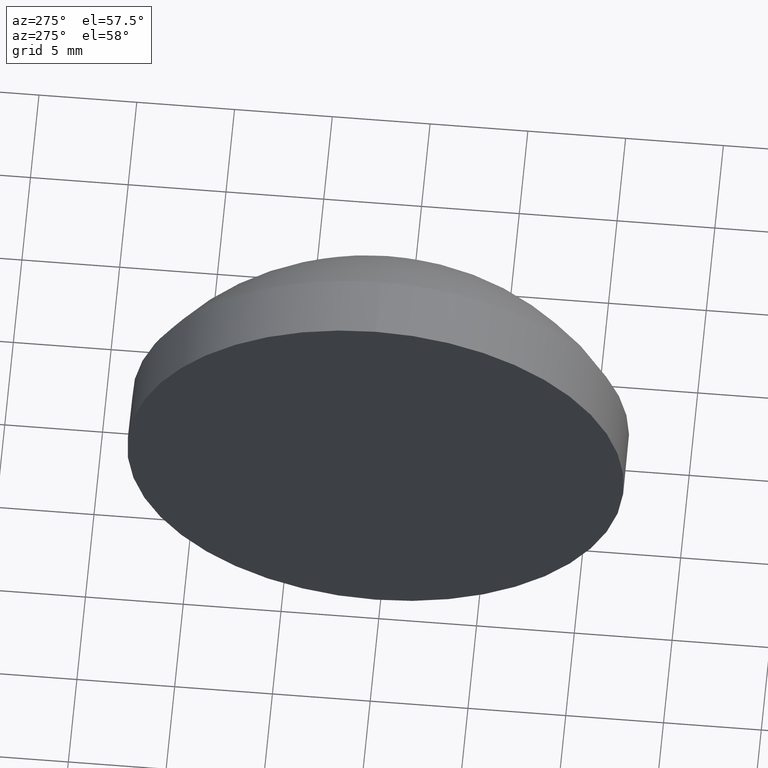
[diagram: clean part render]
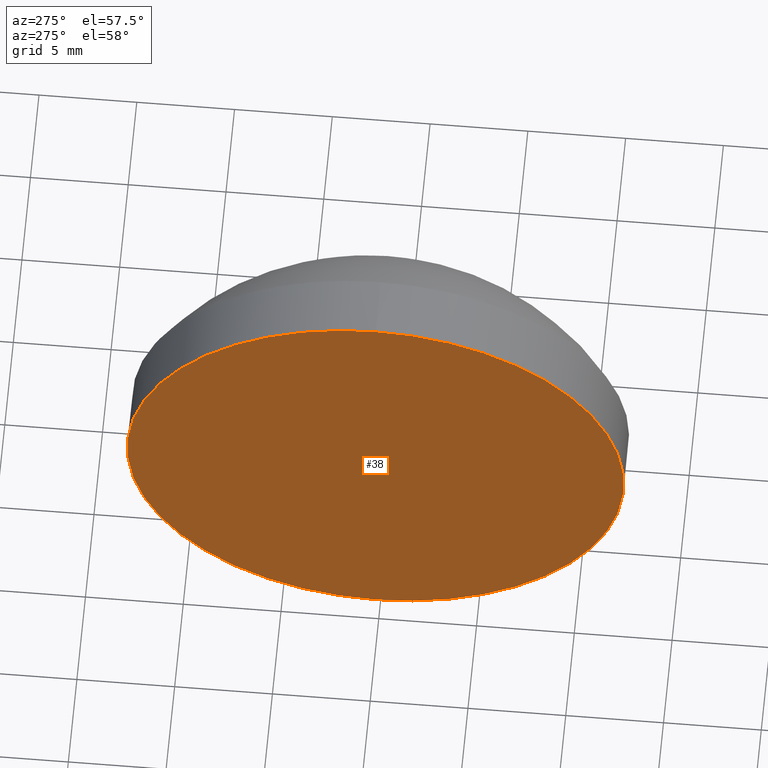
[diagram: same view with one face highlighted and labeled with its STEP entity id]
A machine part, auxiliary view. The second image highlights one B-rep face of the part: STEP entity #38.
In plain terms, the highlighted planar face has unit normal (1, 0, 0).
Its self-contained STEP definition (entity closure, byte-faithful):
#7 = PLANE ( 'NONE',  #16 ) ;
#15 = EDGE_LOOP ( 'NONE', ( #67, #17 ) ) ;
#16 = AXIS2_PLACEMENT_3D ( 'NONE', #123, #55, #37 ) ;
#17 = ORIENTED_EDGE ( 'NONE', *, *, #36, .T. ) ;
#21 = DIRECTION ( 'NONE',  ( -1.000000000000000000, -0.0000000000000000000, -0.0000000000000000000 ) ) ;
#36 = EDGE_CURVE ( 'NONE', #103, #137, #162, .T. ) ;
#37 = DIRECTION ( 'NONE',  ( 0.0000000000000000000, 0.0000000000000000000, -1.000000000000000000 ) ) ;
#38 = ADVANCED_FACE ( 'NONE', ( #71 ), #7, .F. ) ;
#55 = DIRECTION ( 'NONE',  ( 1.000000000000000000, 0.0000000000000000000, 0.0000000000000000000 ) ) ;
#67 = ORIENTED_EDGE ( 'NONE', *, *, #76, .T. ) ;
#71 = FACE_OUTER_BOUND ( 'NONE', #15, .T. ) ;
#76 = EDGE_CURVE ( 'NONE', #137, #103, #134, .T. ) ;
#80 = CARTESIAN_POINT ( 'NONE',  ( 115.7736064308381300, 65.23355492641219700, 0.0000000000000000000 ) ) ;
#84 = CARTESIAN_POINT ( 'NONE',  ( 115.7736064308381300, 65.23355492641219700, -12.70000000000000300 ) ) ;
#103 = VERTEX_POINT ( 'NONE', #84 ) ;
#119 = AXIS2_PLACEMENT_3D ( 'NONE', #151, #21, #154 ) ;
#123 = CARTESIAN_POINT ( 'NONE',  ( 115.7736064308381300, 65.23355492641219700, 0.0000000000000000000 ) ) ;
#124 = DIRECTION ( 'NONE',  ( 0.0000000000000000000, 0.0000000000000000000, 1.000000000000000000 ) ) ;
#134 = CIRCLE ( 'NONE', #119, 12.70000000000000300 ) ;
#137 = VERTEX_POINT ( 'NONE', #143 ) ;
#143 = CARTESIAN_POINT ( 'NONE',  ( 115.7736064308381300, 65.23355492641219700, 12.70000000000000300 ) ) ;
#151 = CARTESIAN_POINT ( 'NONE',  ( 115.7736064308381300, 65.23355492641219700, 0.0000000000000000000 ) ) ;
#154 = DIRECTION ( 'NONE',  ( 0.0000000000000000000, 0.0000000000000000000, 1.000000000000000000 ) ) ;
#162 = CIRCLE ( 'NONE', #182, 12.70000000000000300 ) ;
#166 = DIRECTION ( 'NONE',  ( -1.000000000000000000, -0.0000000000000000000, -0.0000000000000000000 ) ) ;
#182 = AXIS2_PLACEMENT_3D ( 'NONE', #80, #166, #124 ) ;